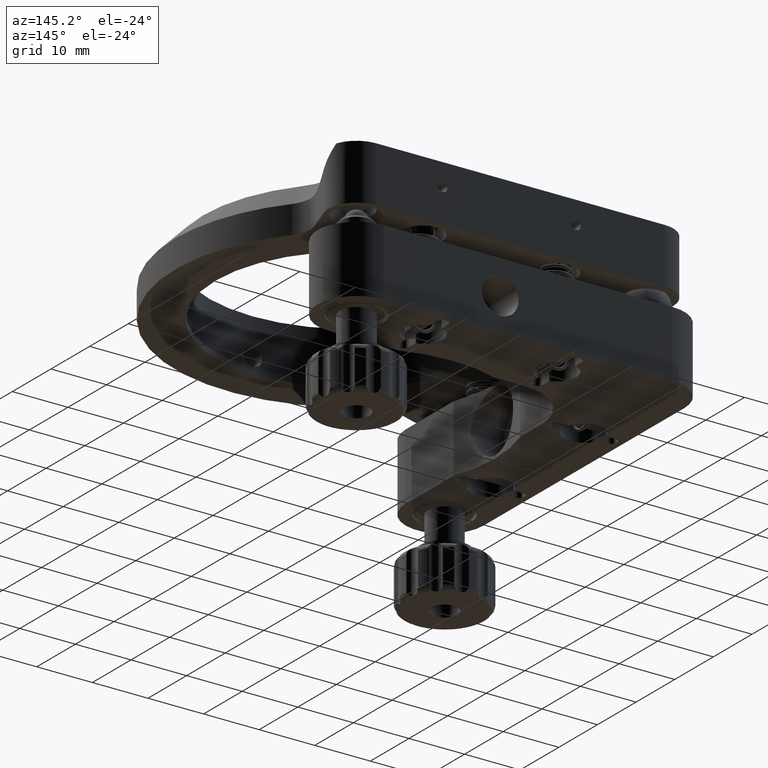
[diagram: clean part render]
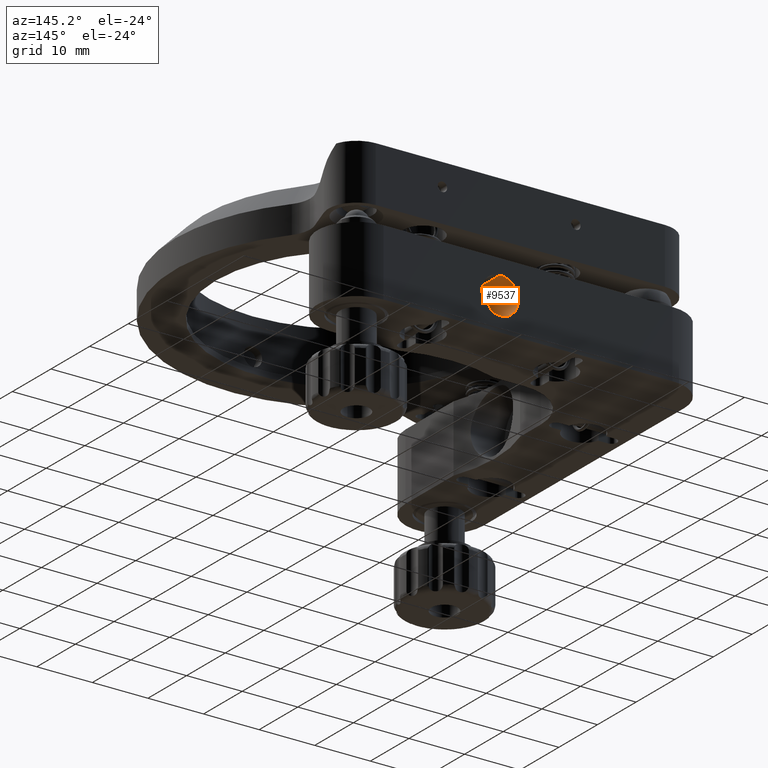
[diagram: same view with one face highlighted and labeled with its STEP entity id]
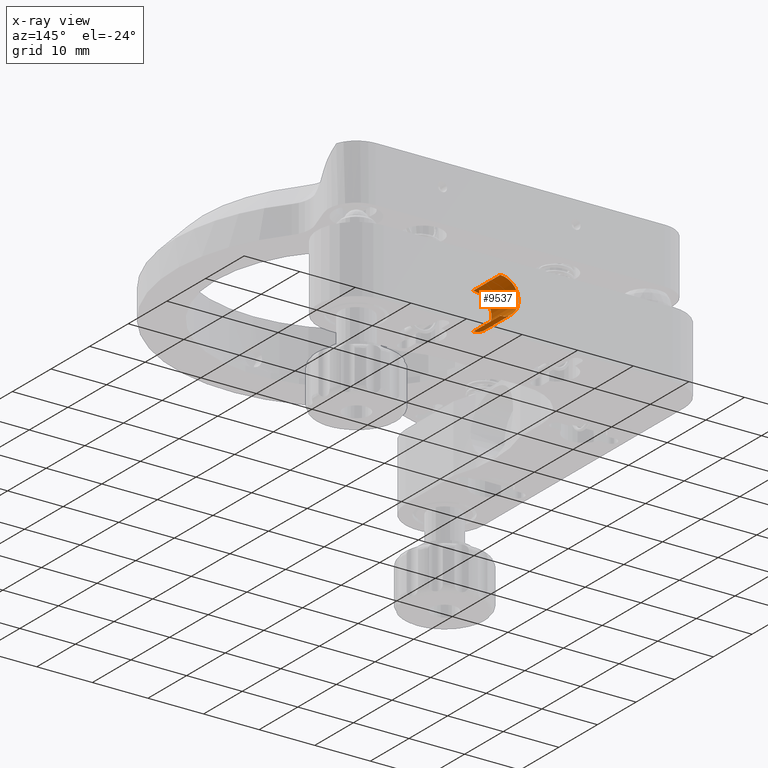
[diagram: x-ray of the same camera — body ghosted, the highlighted face saturated]
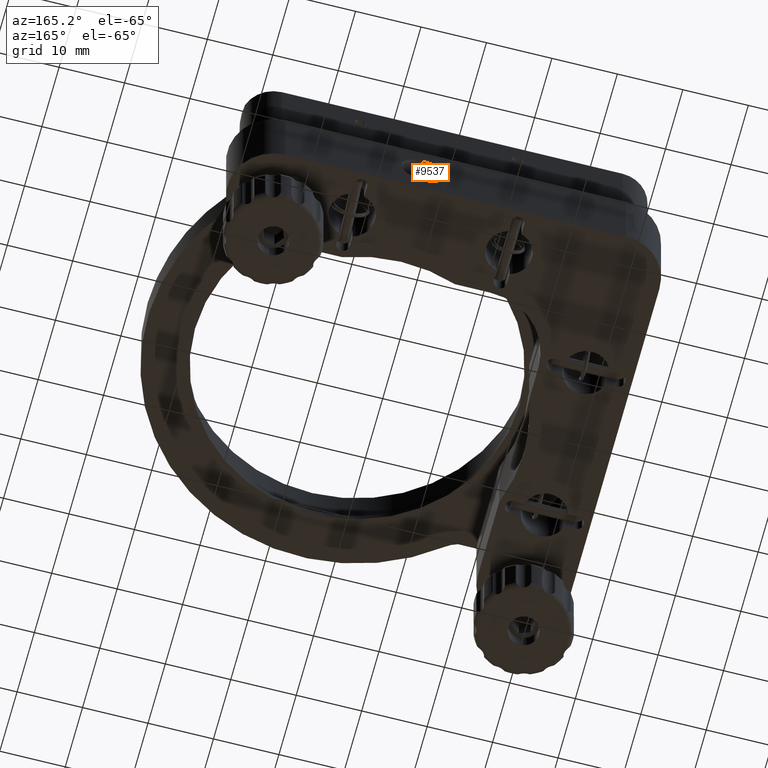
[diagram: same view with one face highlighted and labeled with its STEP entity id]
A machine part, auxiliary view. The second image highlights one B-rep face of the part: STEP entity #9537.
The next image is the same camera in x-ray: the body ghosted, the highlighted face saturated — about 0% of this face is hidden behind the body in this view.
A second angle (auxiliary view) of the same face is appended — the face is thin or edge-on in the first view.
In plain terms, the highlighted cylindrical surface (edge-blend (fillet) strip) has radius 3.3 mm, axis along (0, -1, -0).
Its self-contained STEP definition (entity closure, byte-faithful):
#76 = DIRECTION ( 'NONE',  ( 3.920475055707584033E-16, -1.000000000000000000, -2.587862188697363536E-17 ) ) ;
#924 = VECTOR ( 'NONE', #24815, 1000.000000000000000 ) ;
#1282 = FACE_OUTER_BOUND ( 'NONE', #20495, .T. ) ;
#2828 = LINE ( 'NONE', #13962, #924 ) ;
#3166 = VERTEX_POINT ( 'NONE', #31262 ) ;
#3663 = VERTEX_POINT ( 'NONE', #35896 ) ;
#5077 = DIRECTION ( 'NONE',  ( 0.000000000000000000, 0.000000000000000000, -1.000000000000000000 ) ) ;
#6900 = AXIS2_PLACEMENT_3D ( 'NONE', #30908, #19705, #5077 ) ;
#7124 = CIRCLE ( 'NONE', #34630, 3.300000000000000711 ) ;
#8620 = ORIENTED_EDGE ( 'NONE', *, *, #31965, .F. ) ;
#9434 = CARTESIAN_POINT ( 'NONE',  ( 31.00000000000004974, -7.000000000000000000, -6.700000000000004619 ) ) ;
#9537 = ADVANCED_FACE ( 'NONE', ( #1282 ), #35671, .F. ) ;
#12372 = VECTOR ( 'NONE', #18077, 1000.000000000000000 ) ;
#13962 = CARTESIAN_POINT ( 'NONE',  ( 31.00000000000004974, -7.000000000000000000, -13.29999999999999893 ) ) ;
#14784 = EDGE_CURVE ( 'NONE', #17285, #3166, #33546, .T. ) ;
#15808 = ORIENTED_EDGE ( 'NONE', *, *, #14784, .F. ) ;
#17285 = VERTEX_POINT ( 'NONE', #35965 ) ;
#17896 = LINE ( 'NONE', #9434, #12372 ) ;
#18077 = DIRECTION ( 'NONE',  ( 3.920475055707584033E-16, -1.000000000000000000, -2.587862188697363536E-17 ) ) ;
#18676 = VERTEX_POINT ( 'NONE', #33624 ) ;
#19035 = DIRECTION ( 'NONE',  ( 3.920475055707584033E-16, -1.000000000000000000, -2.587862188697363536E-17 ) ) ;
#19625 = DIRECTION ( 'NONE',  ( 0.000000000000000000, 0.000000000000000000, -1.000000000000000000 ) ) ;
#19705 = DIRECTION ( 'NONE',  ( 3.920475055707584033E-16, -1.000000000000000000, -2.587862188697363536E-17 ) ) ;
#20495 = EDGE_LOOP ( 'NONE', ( #15808, #31025, #27513, #8620 ) ) ;
#24021 = CARTESIAN_POINT ( 'NONE',  ( 31.00000000000004619, 1.241167531839879125E-14, -10.00000000000000178 ) ) ;
#24815 = DIRECTION ( 'NONE',  ( 3.920475055707584033E-16, -1.000000000000000000, -2.587862188697363536E-17 ) ) ;
#25970 = AXIS2_PLACEMENT_3D ( 'NONE', #28429, #76, #19625 ) ;
#27513 = ORIENTED_EDGE ( 'NONE', *, *, #35553, .T. ) ;
#28429 = CARTESIAN_POINT ( 'NONE',  ( 31.00000000000004263, 7.000000000000025757, -10.00000000000000178 ) ) ;
#30908 = CARTESIAN_POINT ( 'NONE',  ( 31.00000000000004974, -7.000000000000000000, -10.00000000000000178 ) ) ;
#31025 = ORIENTED_EDGE ( 'NONE', *, *, #33459, .T. ) ;
#31262 = CARTESIAN_POINT ( 'NONE',  ( 31.00000000000004263, 7.000000000000025757, -13.29999999999999538 ) ) ;
#31965 = EDGE_CURVE ( 'NONE', #3166, #3663, #2828, .T. ) ;
#33459 = EDGE_CURVE ( 'NONE', #17285, #18676, #17896, .T. ) ;
#33546 = CIRCLE ( 'NONE', #25970, 3.299999999999994049 ) ;
#33624 = CARTESIAN_POINT ( 'NONE',  ( 31.00000000000004263, 1.232627586617174436E-14, -6.700000000000001066 ) ) ;
#34630 = AXIS2_PLACEMENT_3D ( 'NONE', #24021, #19035, #35719 ) ;
#35553 = EDGE_CURVE ( 'NONE', #18676, #3663, #7124, .T. ) ;
#35671 = CYLINDRICAL_SURFACE ( 'NONE', #6900, 3.299999999999997158 ) ;
#35719 = DIRECTION ( 'NONE',  ( 0.000000000000000000, 2.587862188697394043E-17, -1.000000000000000000 ) ) ;
#35896 = CARTESIAN_POINT ( 'NONE',  ( 31.00000000000004619, 1.249707477062580659E-14, -13.30000000000000249 ) ) ;
#35965 = CARTESIAN_POINT ( 'NONE',  ( 31.00000000000004263, 7.000000000000025757, -6.700000000000008171 ) ) ;